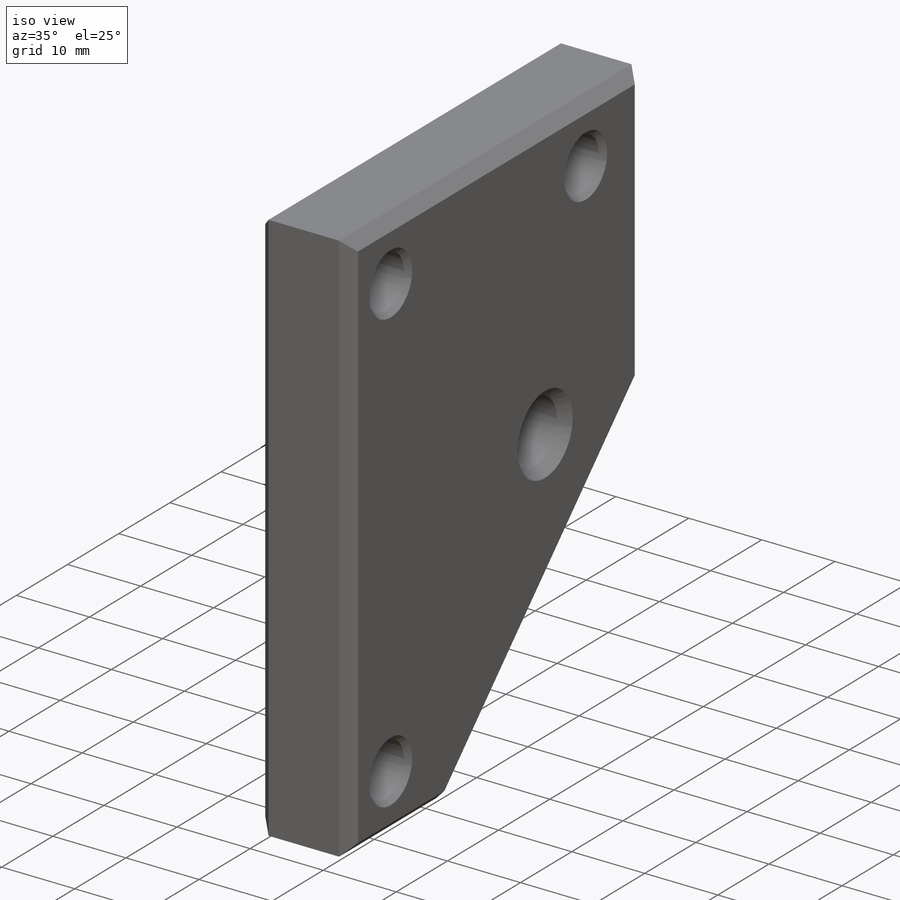
[diagram: iso view]
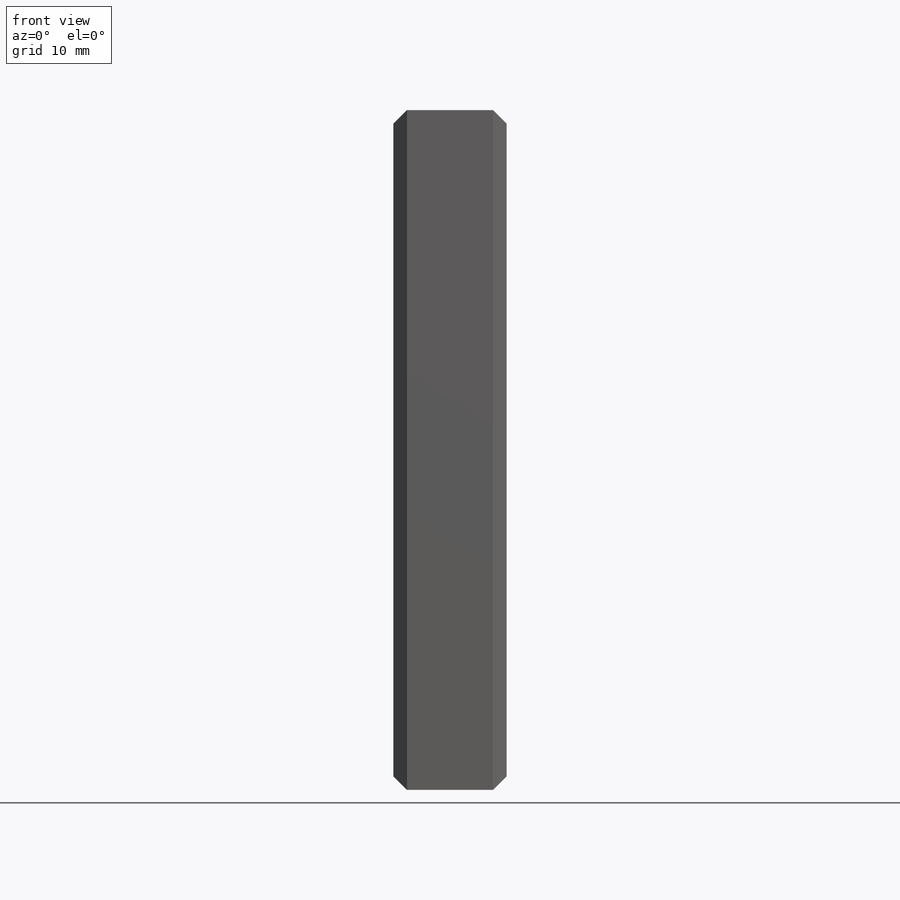
[diagram: front view]
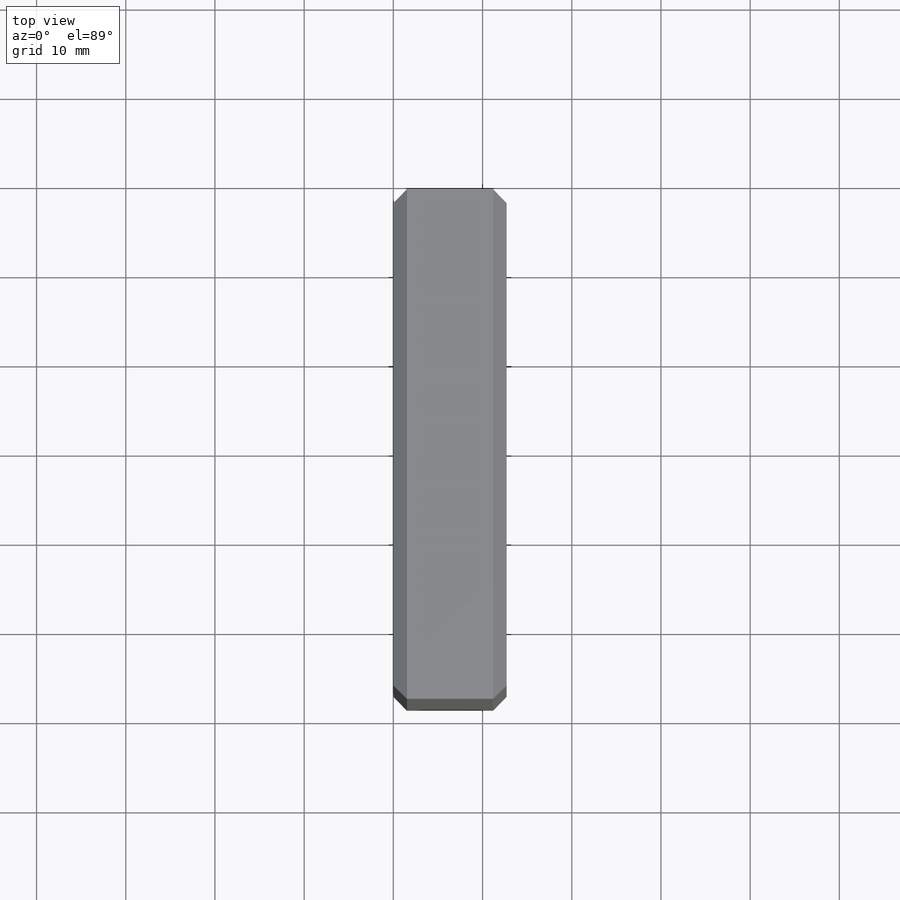
[diagram: top view]
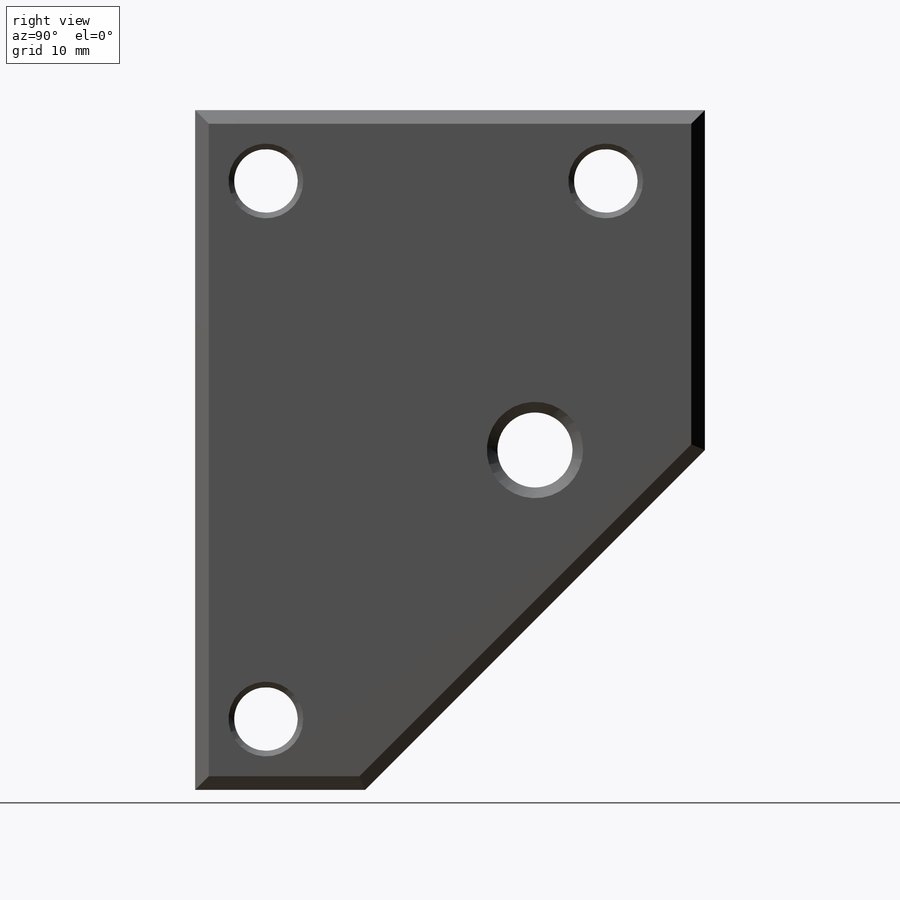
[diagram: right view]
SOLIDWORKS PART (.sldprt)
format: sldprt  version: not decoded by parser v0  size: 635,904 bytes
history: native  units: mm
features: sketch x6, hole x2, material x1, extrude x1, thread x1, cut_extrude x1, chamfer x1 + 1 further entry (+13 scaffold rows collapsed)
feature tree (27):
  scaffold x13  (default folders/planes/origin — collapsed)
  material  "Plain Carbon Steel"
  "Origin"  ID=-1
  sketch  "Sketch1"  dims[D1=57.15mm D2=76.2mm]
  extrude  "Extrude1"  Depth=12.7mm
  hole  "1/4 Clearance Hole1"  Diameter=7.14248mm Depth=12.7mm
  sketch  "Sketch3"  dims[D1=60.325mm D2=38.1mm D3=7.9375mm]
  sketch  "Sketch2"  dims[hole-wizard template sketch: 47 standard entries collapsed; hole parameters kept: c15.Thru Hole Depth=12.7mm c15.Near C'Sink Dia.=8.382mm c15.D4=~3.666174mm c15.Near C'Sink Angle=82.0deg c15.Far C'Sink Dia.=8.382mm c15.D6=~9.919017mm c15.Far C'Sink Angle=82.0deg]
  hole  "3/8-24 Tapped Hole1"  [1 undecoded]
  sketch  "Sketch5"  dims[D1=38.1mm]
  thread  "Hole Thread1"  Diameter=9.525mm  [1 undecoded]
  sketch  "Sketch4"  dims[hole-wizard template sketch: 46 standard entries collapsed; hole parameters kept: c15.Thru Tap Drill Dia.=8.4328mm c15.Thru Tap Drill Depth=12.7mm c15.Near C'Sink Dia.=10.795mm c15.D4=~3.666174mm c15.Near C'Sink Angle=82.0deg c15.Far C'Sink Dia.=10.795mm c15.D6=~9.919017mm c15.Far C'Sink Angle=82.0deg]
  sketch  "Sketch7"  dims[c1.D1=12.7mm c1.D2=19.05mm c2.D1=19.05mm c2.D2=50.8mm]
  cut_extrude  "Cut-Extrude2"  [1 undecoded]
  chamfer  "Chamfer1"  Distance=1.524mm Angle=45deg
decode coverage: 10 of 12 modeling features carry decoded parameters; 1 rows unclassified (native names shown)
note: ~ marks probable driven/reference dimensions
note: 3 parameter values undecoded
note: suppression state not decoded; provenance and decode notes live in map.json
